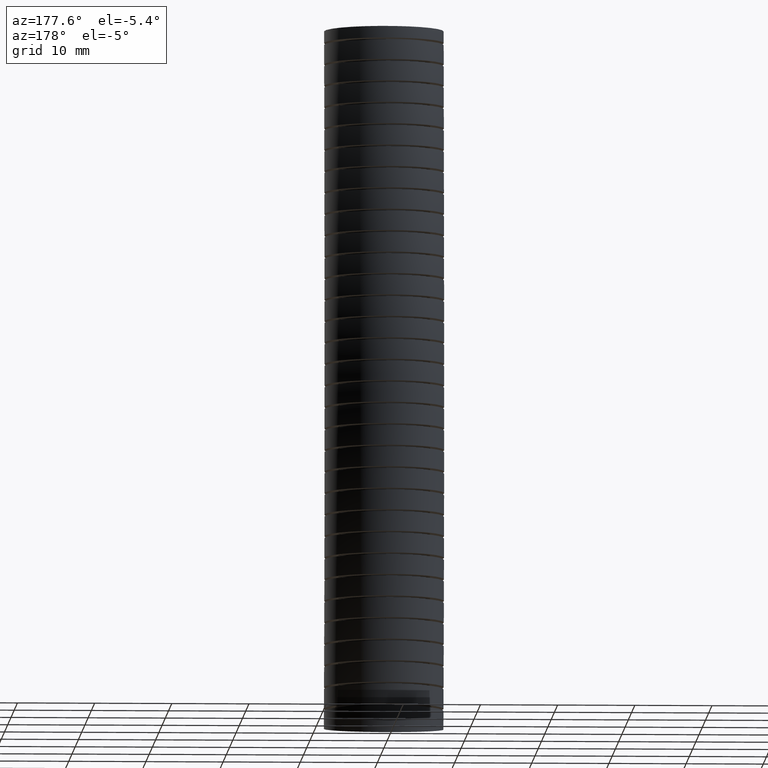
[diagram: clean part render]
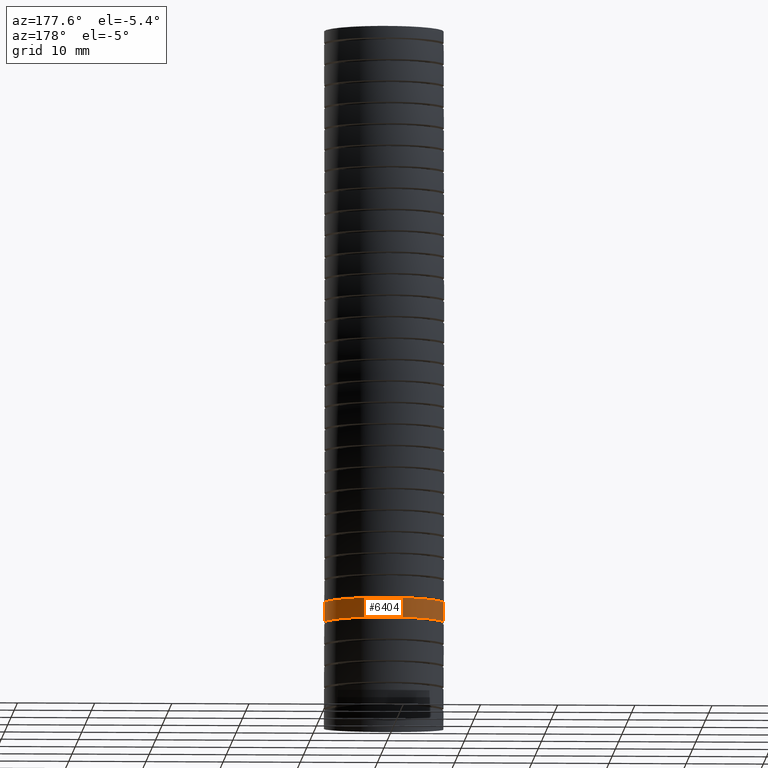
[diagram: same view with one face highlighted and labeled with its STEP entity id]
A machine part, auxiliary view. The second image highlights one B-rep face of the part: STEP entity #6404.
In plain terms, the highlighted face is a freeform B-spline surface patch.
Its self-contained STEP definition (entity closure, byte-faithful):
#1810 = CARTESIAN_POINT ( 'NONE',  ( 0.3049999999999999400, 0.02499767338921905100, -2.928316295231188500 ) ) ;
#1813 = CARTESIAN_POINT ( 'NONE',  ( -0.3050000000000000500, 0.02499767336353264300, -2.928316295423143400 ) ) ;
#2127 = CARTESIAN_POINT ( 'NONE',  ( 0.3049999999999999400, 0.01793470228247132400, -3.028041253003781000 ) ) ;
#2128 = CARTESIAN_POINT ( 'NONE',  ( 0.3049999999999999400, 0.01863321216270144200, -3.018694576158948100 ) ) ;
#2129 = CARTESIAN_POINT ( 'NONE',  ( 0.3049999999999999400, 0.02108185844221136000, -2.985456737633981600 ) ) ;
#2130 = CARTESIAN_POINT ( 'NONE',  ( 0.3049999999999999400, 0.02339876015323272300, -2.952213571832409400 ) ) ;
#2131 = CARTESIAN_POINT ( 'NONE',  ( 0.3049999999999999400, 0.02499767338921905100, -2.928316295231188500 ) ) ;
#2138 = B_SPLINE_CURVE_WITH_KNOTS ( 'NONE', 3,
 ( #2131, #2130, #2129, #2128, #2127 ),
 .UNSPECIFIED., .F., .F.,
 ( 4, 1, 4 ),
 ( 0.8196949898245903300, 0.8398242262648183400, 0.8476996359619820600 ),
 .UNSPECIFIED. ) ;
#2144 = CARTESIAN_POINT ( 'NONE',  ( 0.3049999999999999400, 0.01793470228247132400, -3.028041253003781000 ) ) ;
#2206 = CARTESIAN_POINT ( 'NONE',  ( -0.3050000000000000500, 0.01793470225377384600, -3.028041253195780300 ) ) ;
#2207 = CARTESIAN_POINT ( 'NONE',  ( -0.3049999999999999900, 0.01863321215321889600, -3.018694576287664200 ) ) ;
#2208 = CARTESIAN_POINT ( 'NONE',  ( -0.3049999999999999900, 0.02108185843299167600, -2.985456737762602700 ) ) ;
#2209 = CARTESIAN_POINT ( 'NONE',  ( -0.3049999999999999900, 0.02339876014427506200, -2.952213571960935000 ) ) ;
#2210 = CARTESIAN_POINT ( 'NONE',  ( -0.3050000000000000500, 0.02499767336353264300, -2.928316295423143400 ) ) ;
#2212 = B_SPLINE_CURVE_WITH_KNOTS ( 'NONE', 3,
 ( #2210, #2209, #2208, #2207, #2206 ),
 .UNSPECIFIED., .F., .F.,
 ( 4, 1, 4 ),
 ( 0.8196949898787266900, 0.8398242262648183400, 0.8476996360162072400 ),
 .UNSPECIFIED. ) ;
#2219 = CARTESIAN_POINT ( 'NONE',  ( -0.3050000000000000500, 0.01793470225377384600, -3.028041253195780300 ) ) ;
#6404 = ADVANCED_FACE ( 'NONE', ( #9685 ), #9731, .T. ) ;
#6405 = EDGE_LOOP ( 'NONE', ( #6406, #6407, #6409, #6410 ) ) ;
#6406 = ORIENTED_EDGE ( 'NONE', *, *, #14058, .F. ) ;
#6407 = ORIENTED_EDGE ( 'NONE', *, *, #6408, .T. ) ;
#6408 = EDGE_CURVE ( 'NONE', #13790, #13794, #9741, .T. ) ;
#6409 = ORIENTED_EDGE ( 'NONE', *, *, #14053, .T. ) ;
#6410 = ORIENTED_EDGE ( 'NONE', *, *, #6411, .T. ) ;
#6411 = EDGE_CURVE ( 'NONE', #14052, #14065, #9761, .T. ) ;
#9203 = CARTESIAN_POINT ( 'NONE',  ( -0.3049999999999999400, 0.6100000000000001000, 0.0000000000000000000 ) ) ;
#9685 = FACE_OUTER_BOUND ( 'NONE', #6405, .T. ) ;
#9705 = CARTESIAN_POINT ( 'NONE',  ( -0.3049999999999999900, -0.02999999999999996100, -3.569999999999999400 ) ) ;
#9706 = CARTESIAN_POINT ( 'NONE',  ( -0.3049999999999999400, -0.01189670328115248300, -3.380058092153300100 ) ) ;
#9707 = CARTESIAN_POINT ( 'NONE',  ( -0.3049999999999999900, 0.03783273064349428100, -2.858291051460112500 ) ) ;
#9708 = CARTESIAN_POINT ( 'NONE',  ( -0.3049999999999999900, 0.07694042471324441500, -1.669468061939300500 ) ) ;
#9709 = CARTESIAN_POINT ( 'NONE',  ( -0.3050000000000000500, 0.03078003440073754200, -0.6678710777714059700 ) ) ;
#9710 = CARTESIAN_POINT ( 'NONE',  ( -0.3050000000000000500, 3.735172737399427600E-017, 0.0000000000000000000 ) ) ;
#9711 = CARTESIAN_POINT ( 'NONE',  ( -0.3050000000000000500, -0.6339397472009050700, -3.484228316147418800 ) ) ;
#9712 = CARTESIAN_POINT ( 'NONE',  ( -0.3050000000000000500, -0.6165911457587421900, -3.301565899820480900 ) ) ;
#9713 = CARTESIAN_POINT ( 'NONE',  ( -0.3050000000000000500, -0.5689348463287677800, -2.799795492787948300 ) ) ;
#9714 = CARTESIAN_POINT ( 'NONE',  ( -0.3050000000000001000, -0.5337097317260344200, -1.651227135941712300 ) ) ;
#9715 = CARTESIAN_POINT ( 'NONE',  ( -0.3050000000000001600, -0.5794800608306244200, -0.6605737911785694000 ) ) ;
#9716 = CARTESIAN_POINT ( 'NONE',  ( -0.3050000000000001000, -0.6100000000000001000, 0.0000000000000000000 ) ) ;
#9717 = CARTESIAN_POINT ( 'NONE',  ( 0.3049999999999999400, -0.6339397472009050700, -3.484228316147418800 ) ) ;
#9718 = CARTESIAN_POINT ( 'NONE',  ( 0.3049999999999999400, -0.6165911457587421900, -3.301565899820480900 ) ) ;
#9719 = CARTESIAN_POINT ( 'NONE',  ( 0.3049999999999999400, -0.5689348463287677800, -2.799795492787948300 ) ) ;
#9720 = CARTESIAN_POINT ( 'NONE',  ( 0.3050000000000000500, -0.5337097317260344200, -1.651227135941712300 ) ) ;
#9721 = CARTESIAN_POINT ( 'NONE',  ( 0.3050000000000000500, -0.5794800608306244200, -0.6605737911785694000 ) ) ;
#9722 = CARTESIAN_POINT ( 'NONE',  ( 0.3050000000000000500, -0.6100000000000001000, 0.0000000000000000000 ) ) ;
#9723 = CARTESIAN_POINT ( 'NONE',  ( 0.3049999999999999900, -0.02999999999999999900, -3.569999999999999400 ) ) ;
#9724 = CARTESIAN_POINT ( 'NONE',  ( 0.3049999999999999400, -0.01189670328115252300, -3.380058092153300100 ) ) ;
#9725 = CARTESIAN_POINT ( 'NONE',  ( 0.3049999999999999900, 0.03783273064349424600, -2.858291051460112500 ) ) ;
#9726 = CARTESIAN_POINT ( 'NONE',  ( 0.3049999999999999900, 0.07694042471324438700, -1.669468061939300500 ) ) ;
#9727 = CARTESIAN_POINT ( 'NONE',  ( 0.3050000000000000500, 0.03078003440073750300, -0.6678710777714059700 ) ) ;
#9728 = CARTESIAN_POINT ( 'NONE',  ( 0.3050000000000000500, 0.0000000000000000000, 0.0000000000000000000 ) ) ;
#9731 =( BOUNDED_SURFACE ( )  B_SPLINE_SURFACE ( 3, 3, ( 
 ( #9728, #9727, #9726, #9725, #9724, #9723 ),
 ( #9722, #9721, #9720, #9719, #9718, #9717 ),
 ( #9716, #9715, #9714, #9713, #9712, #9711 ),
 ( #9710, #9709, #9708, #9707, #9706, #9705 ),
 ( #9203, #9758, #9757, #9756, #9755, #9754 ),
 ( #9753, #9752, #9751, #9750, #9749, #9748 ),
 ( #9747, #9746, #9745, #9744, #9743, #9742 ) ),
 .UNSPECIFIED., .F., .F., .F. ) 
 B_SPLINE_SURFACE_WITH_KNOTS ( ( 4, 3, 4 ),
 ( 4, 1, 1, 4 ),
 ( 0.0000000000000000000, 0.5000000000000000000, 1.000000000000000000 ),
 ( 0.0000000000000000000, 0.5599999999999999400, 0.8398242262648183400, 1.000000000000000000 ),
 .UNSPECIFIED. ) 
 GEOMETRIC_REPRESENTATION_ITEM ( )  RATIONAL_B_SPLINE_SURFACE ( (
 ( 1.000000000000000000, 1.000000000000000000, 1.000000000000000200, 1.000000000000000000, 1.000000000000000000, 1.000000000000000000),
 ( 0.3333333333333333100, 0.3333333333333333100, 0.3333333333333333100, 0.3333333333333333100, 0.3333333333333333100, 0.3333333333333333100),
 ( 0.3333333333333333100, 0.3333333333333333100, 0.3333333333333333100, 0.3333333333333333100, 0.3333333333333333100, 0.3333333333333333100),
 ( 1.000000000000000000, 1.000000000000000000, 1.000000000000000200, 1.000000000000000000, 1.000000000000000000, 1.000000000000000000),
 ( 0.3333333333333333100, 0.3333333333333333100, 0.3333333333333333100, 0.3333333333333333100, 0.3333333333333333100, 0.3333333333333333100),
 ( 0.3333333333333333100, 0.3333333333333333100, 0.3333333333333333100, 0.3333333333333333100, 0.3333333333333333100, 0.3333333333333333100),
 ( 1.000000000000000000, 1.000000000000000000, 1.000000000000000200, 1.000000000000000000, 1.000000000000000000, 1.000000000000000000) ) ) 
 REPRESENTATION_ITEM ( '' )  SURFACE ( )  );
#9737 = CARTESIAN_POINT ( 'NONE',  ( -0.3025306575596105100, 0.06503867349013077400, -2.928316295423143400 ) ) ;
#9738 = CARTESIAN_POINT ( 'NONE',  ( -0.3045031249381177100, 0.04509290533802495800, -2.928316295423142500 ) ) ;
#9739 = CARTESIAN_POINT ( 'NONE',  ( -0.3049999999999999900, 0.03499129670751931200, -2.928316295423142100 ) ) ;
#9740 = CARTESIAN_POINT ( 'NONE',  ( -0.3050000000000000500, 0.02499767336353264300, -2.928316295423143400 ) ) ;
#9741 = B_SPLINE_CURVE_WITH_KNOTS ( 'NONE', 3,
 ( #9740, #9739, #9738, #9737, #9806, #9805, #9804, #9803, #9801, #9800, #9799, #9798, #9797, #9796, #9795, #9794, #9793, #9792, #9791, #9790, #9789, #9788, #9787, #9786, #9785, #9784, #9783, #9782, #9781, #9780, #9779, #9778, #9777, #9776, #9775, #9774, #9773, #9772, #9771, #9769, #9768, #9767, #9766, #9765, #9764 ),
 .UNSPECIFIED., .F., .F.,
 ( 4, 2, 2, 2, 2, 2, 2, 2, 2, 2, 2, 1, 2, 2, 2, 2, 2, 2, 2, 2, 2, 2, 4 ),
 ( 0.02449080573062005100, 0.02525614856449349300, 0.02602149139836693000, 0.02755217706611381300, 0.02908286273386069200, 0.02984820556773413300, 0.03061354840160757100, 0.03214423406935445300, 0.03367491973710133600, 0.03520560540484821100, 0.03597094823872165600, 0.03673629107259509400, 0.03750163390646853200, 0.03826697674034197600, 0.03979766240808885200, 0.04056300524196229700, 0.04132834807583573400, 0.04285903374358261700, 0.04362437657745604800, 0.04438971941132949200, 0.04592040507907636800, 0.04745109074682325000, 0.04898177641457012600 ),
 .UNSPECIFIED. ) ;
#9742 = CARTESIAN_POINT ( 'NONE',  ( 0.3049999999999999900, -0.02999999999999999900, -3.569999999999999400 ) ) ;
#9743 = CARTESIAN_POINT ( 'NONE',  ( 0.3049999999999999400, -0.01189670328115252300, -3.380058092153300100 ) ) ;
#9744 = CARTESIAN_POINT ( 'NONE',  ( 0.3049999999999999900, 0.03783273064349424600, -2.858291051460112500 ) ) ;
#9745 = CARTESIAN_POINT ( 'NONE',  ( 0.3049999999999999900, 0.07694042471324438700, -1.669468061939300500 ) ) ;
#9746 = CARTESIAN_POINT ( 'NONE',  ( 0.3050000000000000500, 0.03078003440073750300, -0.6678710777714059700 ) ) ;
#9747 = CARTESIAN_POINT ( 'NONE',  ( 0.3050000000000000500, 0.0000000000000000000, 0.0000000000000000000 ) ) ;
#9748 = CARTESIAN_POINT ( 'NONE',  ( 0.3049999999999999400, 0.5739397472009051300, -3.655771683852579600 ) ) ;
#9749 = CARTESIAN_POINT ( 'NONE',  ( 0.3049999999999999400, 0.5927977391964371900, -3.458550284486119800 ) ) ;
#9750 = CARTESIAN_POINT ( 'NONE',  ( 0.3049999999999999400, 0.6446003076157559300, -2.916786610132277200 ) ) ;
#9751 = CARTESIAN_POINT ( 'NONE',  ( 0.3050000000000000500, 0.6875905811525232500, -1.687708987936889400 ) ) ;
#9752 = CARTESIAN_POINT ( 'NONE',  ( 0.3050000000000000500, 0.6410401296320993300, -0.6751683643642422100 ) ) ;
#9753 = CARTESIAN_POINT ( 'NONE',  ( 0.3050000000000000500, 0.6100000000000001000, 0.0000000000000000000 ) ) ;
#9754 = CARTESIAN_POINT ( 'NONE',  ( -0.3049999999999998800, 0.5739397472009051300, -3.655771683852579600 ) ) ;
#9755 = CARTESIAN_POINT ( 'NONE',  ( -0.3049999999999998800, 0.5927977391964373000, -3.458550284486119800 ) ) ;
#9756 = CARTESIAN_POINT ( 'NONE',  ( -0.3049999999999999400, 0.6446003076157562600, -2.916786610132277200 ) ) ;
#9757 = CARTESIAN_POINT ( 'NONE',  ( -0.3049999999999999400, 0.6875905811525234700, -1.687708987936889400 ) ) ;
#9758 = CARTESIAN_POINT ( 'NONE',  ( -0.3049999999999999400, 0.6410401296320996600, -0.6751683643642422100 ) ) ;
#9761 = B_SPLINE_CURVE_WITH_KNOTS ( 'NONE', 3,
 ( #9854, #9853, #9852, #9851, #9850, #9849, #9848, #9847, #9846, #9845, #9844, #9843, #9842, #9841, #9840, #9839, #9838, #9837, #9836, #9835, #9834, #9833, #9832, #9831, #9830, #9829, #9828, #9827, #9826, #9825, #9824, #9823, #9822, #9821, #9820, #9819, #9818, #9817, #9816, #9815, #9814, #9813, #9812 ),
 .UNSPECIFIED., .F., .F.,
 ( 4, 2, 2, 2, 2, 2, 2, 2, 2, 2, 2, 2, 2, 2, 2, 2, 1, 2, 2, 2, 2, 4 ),
 ( 0.0000000000000000000, 0.0007655286737299079300, 0.001531057347459815900, 0.003062114694919631700, 0.004593172042379447600, 0.006124229389839263400, 0.006889758063569170100, 0.007655286737299076700, 0.009186344084758891700, 0.01071740143221870700, 0.01148293010594861500, 0.01224845877967852300, 0.01377951612713834000, 0.01531057347459815500, 0.01684163082205797000, 0.01760715949578788000, 0.01837268816951778700, 0.01913821684324769700, 0.01990374551697760400, 0.02143480286443742000, 0.02296586021189723400, 0.02449691755935705400 ),
 .UNSPECIFIED. ) ;
#9764 = CARTESIAN_POINT ( 'NONE',  ( 0.3049999999999999400, 0.02499767338921905100, -2.928316295231188500 ) ) ;
#9765 = CARTESIAN_POINT ( 'NONE',  ( 0.3049999999999998800, 0.04515500663651726000, -2.928316295231188100 ) ) ;
#9766 = CARTESIAN_POINT ( 'NONE',  ( 0.3029992113417834800, 0.06516798992049245600, -2.928316295423142100 ) ) ;
#9767 = CARTESIAN_POINT ( 'NONE',  ( 0.2952371511436064400, 0.1041513311125395500, -2.928316295423143000 ) ) ;
#9768 = CARTESIAN_POINT ( 'NONE',  ( 0.2894515880182989000, 0.1233024434498583400, -2.928316295423142500 ) ) ;
#9769 = CARTESIAN_POINT ( 'NONE',  ( 0.2740535836052345200, 0.1604802974803717900, -2.928316295423142500 ) ) ;
#9771 = CARTESIAN_POINT ( 'NONE',  ( 0.2646548981991509500, 0.1780272751602380300, -2.928316295423142500 ) ) ;
#9772 = CARTESIAN_POINT ( 'NONE',  ( 0.2480940192235518100, 0.2028379510177751300, -2.928316295423143000 ) ) ;
#9773 = CARTESIAN_POINT ( 'NONE',  ( 0.2421602507513429000, 0.2108547052438061500, -2.928316295423143900 ) ) ;
#9774 = CARTESIAN_POINT ( 'NONE',  ( 0.2294438780139271800, 0.2263678556134854100, -2.928316295423143900 ) ) ;
#9775 = CARTESIAN_POINT ( 'NONE',  ( 0.2226580514809602100, 0.2338567634148054600, -2.928316295423140300 ) ) ;
#9776 = CARTESIAN_POINT ( 'NONE',  ( 0.2014727180991375500, 0.2550452400188195100, -2.928316295423140800 ) ) ;
#9777 = CARTESIAN_POINT ( 'NONE',  ( 0.1861154675677150800, 0.2676568960588152600, -2.928316295423139900 ) ) ;
#9778 = CARTESIAN_POINT ( 'NONE',  ( 0.1612324205760351200, 0.2843075247494719600, -2.928316295423140300 ) ) ;
#9779 = CARTESIAN_POINT ( 'NONE',  ( 0.1525811542072330100, 0.2895012639135912100, -2.928316295423141200 ) ) ;
#9780 = CARTESIAN_POINT ( 'NONE',  ( 0.1348725820713248800, 0.2989700233735019300, -2.928316295423141200 ) ) ;
#9781 = CARTESIAN_POINT ( 'NONE',  ( 0.1258485178960059800, 0.3032342132629157700, -2.928316295423143000 ) ) ;
#9782 = CARTESIAN_POINT ( 'NONE',  ( 0.09828108062936769000, 0.3146552336232743000, -2.928316295423143000 ) ) ;
#9783 = CARTESIAN_POINT ( 'NONE',  ( 0.07924722208901353900, 0.3204536953466267700, -2.928316295423143000 ) ) ;
#9784 = CARTESIAN_POINT ( 'NONE',  ( 0.04968226000029829500, 0.3263426957537203800, -2.928316295423142500 ) ) ;
#9785 = CARTESIAN_POINT ( 'NONE',  ( 0.03971425431391355200, 0.3278175796130473600, -2.928316295423140800 ) ) ;
#9786 = CARTESIAN_POINT ( 'NONE',  ( 0.01985966726573251700, 0.3297674552385606000, -2.928316295423142100 ) ) ;
#9787 = CARTESIAN_POINT ( 'NONE',  ( -3.882102474296375100E-006, 0.3307364241840894900, -2.928316295423139000 ) ) ;
#9788 = CARTESIAN_POINT ( 'NONE',  ( -0.01988514775333219100, 0.3297663840401255900, -2.928316295423141200 ) ) ;
#9789 = CARTESIAN_POINT ( 'NONE',  ( -0.03977542417098009500, 0.3278101348219993900, -2.928316295423141200 ) ) ;
#9790 = CARTESIAN_POINT ( 'NONE',  ( -0.04977954229459900100, 0.3263257357493626300, -2.928316295423143000 ) ) ;
#9791 = CARTESIAN_POINT ( 'NONE',  ( -0.07926556218746734500, 0.3204451809125993800, -2.928316295423141200 ) ) ;
#9792 = CARTESIAN_POINT ( 'NONE',  ( -0.09828579418356747600, 0.3146549770549491600, -2.928316295423143000 ) ) ;
#9793 = CARTESIAN_POINT ( 'NONE',  ( -0.1350773057059961000, 0.2994090847413881100, -2.928316295423143400 ) ) ;
#9794 = CARTESIAN_POINT ( 'NONE',  ( -0.1529942952738655400, 0.2898228568350271800, -2.928316295423142100 ) ) ;
#9795 = CARTESIAN_POINT ( 'NONE',  ( -0.1861173209436854100, 0.2676529061262081800, -2.928316295423141200 ) ) ;
#9796 = CARTESIAN_POINT ( 'NONE',  ( -0.2014799619075829700, 0.2550422640419319200, -2.928316295423142100 ) ) ;
#9797 = CARTESIAN_POINT ( 'NONE',  ( -0.2227032841458120600, 0.2338093822077551000, -2.928316295423141200 ) ) ;
#9798 = CARTESIAN_POINT ( 'NONE',  ( -0.2294959737289973300, 0.2263072441036550800, -2.928316295423141200 ) ) ;
#9799 = CARTESIAN_POINT ( 'NONE',  ( -0.2421804700864052300, 0.2108270802625921400, -2.928316295423140800 ) ) ;
#9800 = CARTESIAN_POINT ( 'NONE',  ( -0.2481056695413066100, 0.2028213580736969700, -2.928316295423141200 ) ) ;
#9801 = CARTESIAN_POINT ( 'NONE',  ( -0.2646560687107631900, 0.1780237976958110900, -2.928316295423142500 ) ) ;
#9803 = CARTESIAN_POINT ( 'NONE',  ( -0.2740830900847033300, 0.1604230337916706400, -2.928316295423143900 ) ) ;
#9804 = CARTESIAN_POINT ( 'NONE',  ( -0.2894842668342451600, 0.1232095067405263700, -2.928316295423143400 ) ) ;
#9805 = CARTESIAN_POINT ( 'NONE',  ( -0.2952386208243488200, 0.1041477917837453100, -2.928316295423143400 ) ) ;
#9806 = CARTESIAN_POINT ( 'NONE',  ( -0.3010613387048700100, 0.07489863165696815400, -2.928316295423143900 ) ) ;
#9812 = CARTESIAN_POINT ( 'NONE',  ( -0.3050000000000000500, 0.01793470225377384600, -3.028041253195780300 ) ) ;
#9813 = CARTESIAN_POINT ( 'NONE',  ( -0.3050000000000000500, 0.03792709500844793800, -3.028041253195781200 ) ) ;
#9814 = CARTESIAN_POINT ( 'NONE',  ( -0.3030589346226513200, 0.05770962175202216900, -3.028041253195784300 ) ) ;
#9815 = CARTESIAN_POINT ( 'NONE',  ( -0.2953165840456263300, 0.09685731220465559900, -3.028041253195784300 ) ) ;
#9816 = CARTESIAN_POINT ( 'NONE',  ( -0.2894361133374603900, 0.1163007016303583600, -3.028041253195780800 ) ) ;
#9817 = CARTESIAN_POINT ( 'NONE',  ( -0.2742374277464260700, 0.1530949435954354300, -3.028041253195780800 ) ) ;
#9818 = CARTESIAN_POINT ( 'NONE',  ( -0.2648974457747883500, 0.1706626807991076200, -3.028041253195780800 ) ) ;
#9819 = CARTESIAN_POINT ( 'NONE',  ( -0.2482045184614540800, 0.1957359063103318900, -3.028041253195781200 ) ) ;
#9820 = CARTESIAN_POINT ( 'NONE',  ( -0.2421995931074890900, 0.2038528620074920300, -3.028041253195781700 ) ) ;
#9821 = CARTESIAN_POINT ( 'NONE',  ( -0.2295511234317936500, 0.2193044390910225700, -3.028041253195782500 ) ) ;
#9822 = CARTESIAN_POINT ( 'NONE',  ( -0.2162059272880774400, 0.2340646141951992500, -3.028041253195776300 ) ) ;
#9823 = CARTESIAN_POINT ( 'NONE',  ( -0.2014856973311225400, 0.2474602637017583900, -3.028041253195783400 ) ) ;
#9824 = CARTESIAN_POINT ( 'NONE',  ( -0.1860672498450712800, 0.2601630315628012900, -3.028041253195783900 ) ) ;
#9825 = CARTESIAN_POINT ( 'NONE',  ( -0.1779612368657454700, 0.2661981807141883300, -3.028041253195780300 ) ) ;
#9826 = CARTESIAN_POINT ( 'NONE',  ( -0.1529542626623684200, 0.2829558122473909700, -3.028041253195780800 ) ) ;
#9827 = CARTESIAN_POINT ( 'NONE',  ( -0.1354174718148088700, 0.2923458933683283900, -3.028041253195780800 ) ) ;
#9828 = CARTESIAN_POINT ( 'NONE',  ( -0.09865240035729690200, 0.3076439411192359900, -3.028041253195781700 ) ) ;
#9829 = CARTESIAN_POINT ( 'NONE',  ( -0.07921468136400138000, 0.3135695884804026200, -3.028041253195779400 ) ) ;
#9830 = CARTESIAN_POINT ( 'NONE',  ( -0.04009897353061908600, 0.3213818403964964200, -3.028041253195780300 ) ) ;
#9831 = CARTESIAN_POINT ( 'NONE',  ( -0.02031796502252292800, 0.3233543570808693500, -3.028041253195779400 ) ) ;
#9832 = CARTESIAN_POINT ( 'NONE',  ( 0.009691471022215292200, 0.3233850651163186500, -3.028041253195780300 ) ) ;
#9833 = CARTESIAN_POINT ( 'NONE',  ( 0.01980149437449911200, 0.3228956287586802200, -3.028041253195779400 ) ) ;
#9834 = CARTESIAN_POINT ( 'NONE',  ( 0.03973758139604277600, 0.3209377585655524600, -3.028041253195779000 ) ) ;
#9835 = CARTESIAN_POINT ( 'NONE',  ( 0.04959593804217200800, 0.3194744124144111600, -3.028041253195776300 ) ) ;
#9836 = CARTESIAN_POINT ( 'NONE',  ( 0.07884925836913984900, 0.3136634283528718100, -3.028041253195776300 ) ) ;
#9837 = CARTESIAN_POINT ( 'NONE',  ( 0.09793262299121548200, 0.3079059597360124800, -3.028041253195783000 ) ) ;
#9838 = CARTESIAN_POINT ( 'NONE',  ( 0.1351830915350769000, 0.2924799540880065900, -3.028041253195783400 ) ) ;
#9839 = CARTESIAN_POINT ( 'NONE',  ( 0.1527404963706783000, 0.2830654939666238900, -3.028041253195782500 ) ) ;
#9840 = CARTESIAN_POINT ( 'NONE',  ( 0.1775405748655569900, 0.2664963273887305800, -3.028041253195782500 ) ) ;
#9841 = CARTESIAN_POINT ( 'NONE',  ( 0.1855493579178519900, 0.2605623237645236000, -3.028041253195779000 ) ) ;
#9842 = CARTESIAN_POINT ( 'NONE',  ( 0.2010393632836931000, 0.2478537121665560000, -3.028041253195778500 ) ) ;
#9843 = CARTESIAN_POINT ( 'NONE',  ( 0.2085366867400508000, 0.2410553855368028900, -3.028041253195777700 ) ) ;
#9844 = CARTESIAN_POINT ( 'NONE',  ( 0.2297431686672204400, 0.2198311971105906000, -3.028041253195778500 ) ) ;
#9845 = CARTESIAN_POINT ( 'NONE',  ( 0.2423476280248729700, 0.2044608121137294600, -3.028041253195780300 ) ) ;
#9846 = CARTESIAN_POINT ( 'NONE',  ( 0.2645190434400407400, 0.1713011937255788400, -3.028041253195780300 ) ) ;
#9847 = CARTESIAN_POINT ( 'NONE',  ( 0.2740971188443851500, 0.1533807509749556300, -3.028041253195780800 ) ) ;
#9848 = CARTESIAN_POINT ( 'NONE',  ( 0.2893369206684481800, 0.1165938586358235300, -3.028041253195780300 ) ) ;
#9849 = CARTESIAN_POINT ( 'NONE',  ( 0.2951344084592653100, 0.09756622117541598200, -3.028041253195779400 ) ) ;
#9850 = CARTESIAN_POINT ( 'NONE',  ( 0.3010336387025985800, 0.06805142149045036200, -3.028041253195779400 ) ) ;
#9851 = CARTESIAN_POINT ( 'NONE',  ( 0.3025244462309394400, 0.05805289153642588500, -3.028041253195780300 ) ) ;
#9852 = CARTESIAN_POINT ( 'NONE',  ( 0.3045029269971585900, 0.03805548999335791500, -3.028041253195780300 ) ) ;
#9853 = CARTESIAN_POINT ( 'NONE',  ( 0.3049999999999998800, 0.02801579669533804300, -3.028041253003780600 ) ) ;
#9854 = CARTESIAN_POINT ( 'NONE',  ( 0.3049999999999999400, 0.01793470228247132400, -3.028041253003781000 ) ) ;
#13790 = VERTEX_POINT ( 'NONE', #1813 ) ;
#13794 = VERTEX_POINT ( 'NONE', #1810 ) ;
#14052 = VERTEX_POINT ( 'NONE', #2144 ) ;
#14053 = EDGE_CURVE ( 'NONE', #13794, #14052, #2138, .T. ) ;
#14058 = EDGE_CURVE ( 'NONE', #13790, #14065, #2212, .T. ) ;
#14065 = VERTEX_POINT ( 'NONE', #2219 ) ;